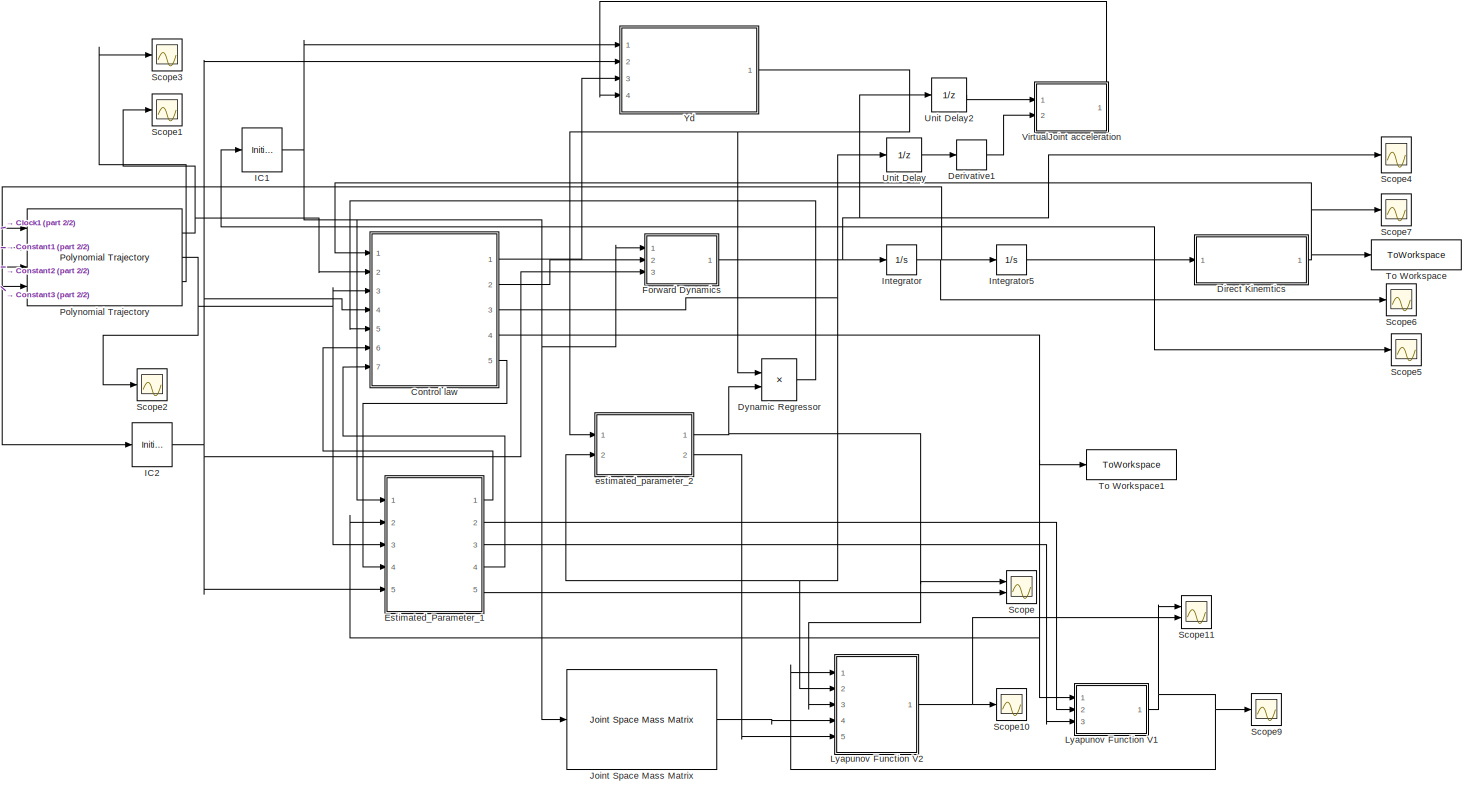
[diagram: root canvas - part 1/2, most of the canvas]
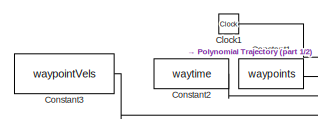
[diagram: root canvas - part 2/2, top left region]
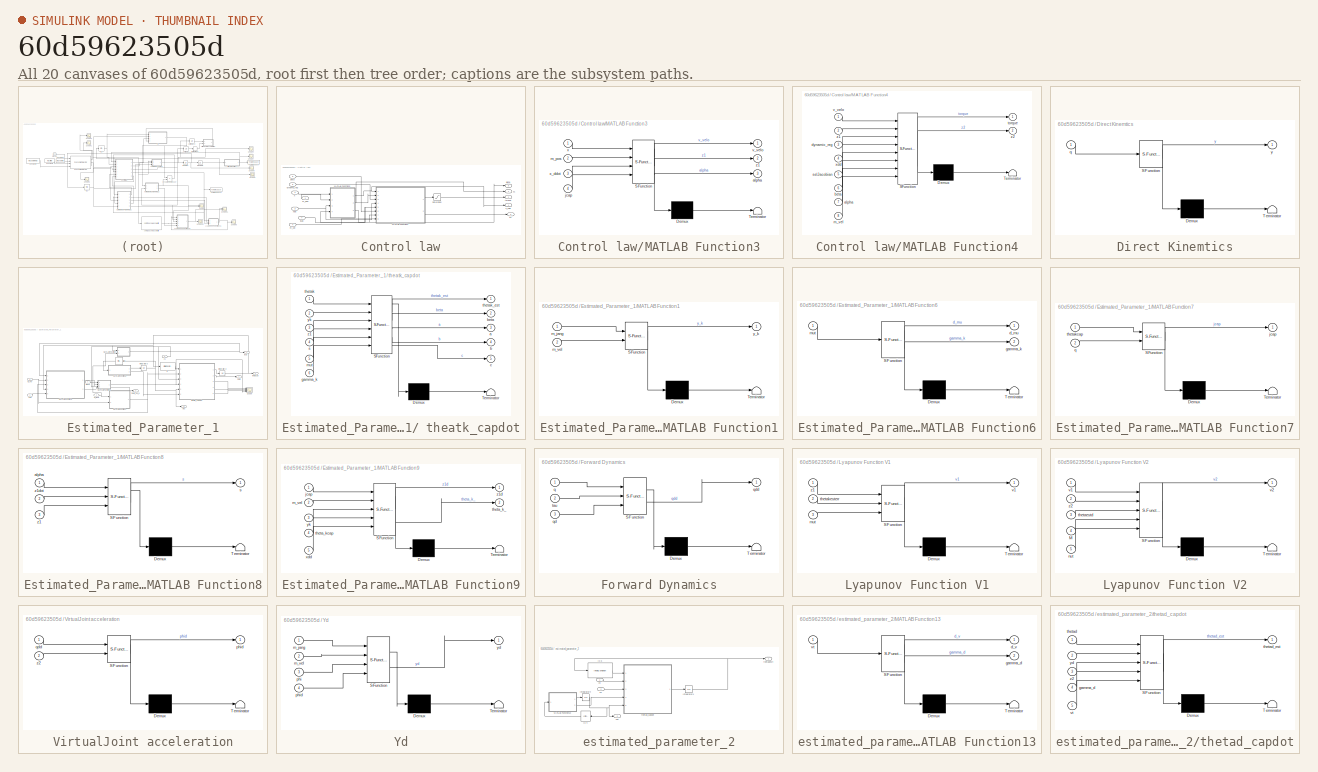
[diagram: thumbnail index - all 20 canvases of the model, root first then tree order]
MODEL slx_60d59623505d
KIND model
CONFIG AbsTol = auto
CONFIG EnableMultiTasking = off
CONFIG FixedStep = 1
CONFIG MaxStep = auto
CONFIG MinStep = auto
CONFIG RelTol = 1e-3
CONFIG SampleTimeConstraint = Unconstrained
CONFIG SolverName = ode15s
CONFIG StartTime = 0.0
CONFIG StopTime = t_f
BLOCK [Clock] Clock1
BLOCK [Constant] Constant1
  Value = waypoints
BLOCK [Constant] Constant2
  Value = waytime
BLOCK [Constant] Constant3
  Value = waypointVels
BLOCK [SubSystem] Control law
  Ports = [7, 5]
  RequestExecContextInheritance = off
BLOCK [SubSystem] Control law/MATLAB Function3
  ErrorFcn = Stateflow.Translate.translate
  PermitHierarchicalResolution = ExplicitOnly
  Ports = [4, 3]
  RequestExecContextInheritance = off
  SFBlockType = MATLAB Function
  TreatAsAtomicUnit = on
BLOCK [Demux] Control law/MATLAB Function3/ Demux 
  Outputs = 1
  Ports = [1, 1]
BLOCK [S-Function] Control law/MATLAB Function3/ SFunction 
  EnableBusSupport = on
  FunctionName = sf_sfun
  PortCounts = [4 4]
  Ports = [4, 4]
  SFcnIsStateOwnerBlock = off
  SFunctionDeploymentMode = off
  Tag = Stateflow S-Function 4
BLOCK [Terminator] Control law/MATLAB Function3/ Terminator 
BLOCK [Outport] Control law/MATLAB Function3/alpha
  Port = 3
BLOCK [Inport] Control law/MATLAB Function3/jcap
  Port = 4
BLOCK [Inport] Control law/MATLAB Function3/m_pos
  Port = 2
BLOCK [Outport] Control law/MATLAB Function3/v_velo
BLOCK [Inport] Control law/MATLAB Function3/x
BLOCK [Inport] Control law/MATLAB Function3/x_ddot
  Port = 3
BLOCK [Outport] Control law/MATLAB Function3/z1
  Port = 2
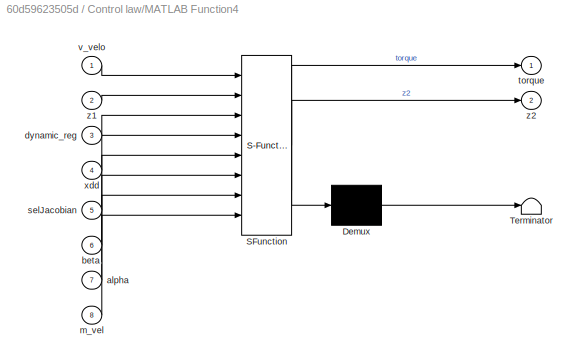
BLOCK [SubSystem] Control law/MATLAB Function4
  ErrorFcn = Stateflow.Translate.translate
  PermitHierarchicalResolution = ExplicitOnly
  Ports = [8, 2]
  RequestExecContextInheritance = off
  SFBlockType = MATLAB Function
  TreatAsAtomicUnit = on
BLOCK [Demux] Control law/MATLAB Function4/ Demux 
  Outputs = 1
  Ports = [1, 1]
BLOCK [S-Function] Control law/MATLAB Function4/ SFunction 
  EnableBusSupport = on
  FunctionName = sf_sfun
  PortCounts = [8 3]
  Ports = [8, 3]
  SFcnIsStateOwnerBlock = off
  SFunctionDeploymentMode = off
  Tag = Stateflow S-Function 5
BLOCK [Terminator] Control law/MATLAB Function4/ Terminator 
BLOCK [Inport] Control law/MATLAB Function4/alpha
  Port = 7
BLOCK [Inport] Control law/MATLAB Function4/beta
  Port = 6
BLOCK [Inport] Control law/MATLAB Function4/dynamic_reg
  Port = 3
BLOCK [Inport] Control law/MATLAB Function4/m_vel
  Port = 8
BLOCK [Inport] Control law/MATLAB Function4/selJacobian
  Port = 5
BLOCK [Outport] Control law/MATLAB Function4/torque
BLOCK [Inport] Control law/MATLAB Function4/v_velo
BLOCK [Inport] Control law/MATLAB Function4/xdd
  Port = 4
BLOCK [Inport] Control law/MATLAB Function4/z1
  Port = 2
BLOCK [Outport] Control law/MATLAB Function4/z2
  Port = 2
BLOCK [Saturate] Control law/Saturation
  LowerLimit = [0.0001,0.0001]
  UpperLimit = [5,5]
BLOCK [Outport] Control law/alpha
  Port = 5
BLOCK [Inport] Control law/beta
  Port = 6
BLOCK [Inport] Control law/dynamic_reg
  Port = 5
BLOCK [Inport] Control law/jcap
  Port = 7
BLOCK [Inport] Control law/m_pos
BLOCK [Inport] Control law/m_vel
  Port = 4
BLOCK [Outport] Control law/torque
  Port = 2
BLOCK [Outport] Control law/v_velo
BLOCK [Inport] Control law/x
  Port = 2
BLOCK [Inport] Control law/xdd
  Port = 3
BLOCK [Outport] Control law/z1
  Port = 4
BLOCK [Outport] Control law/z2
  Port = 3
BLOCK [Derivative] Derivative1
BLOCK [SubSystem] Direct Kinemtics
  ErrorFcn = Stateflow.Translate.translate
  PermitHierarchicalResolution = ExplicitOnly
  Ports = [1, 1]
  RequestExecContextInheritance = off
  SFBlockType = MATLAB Function
  TreatAsAtomicUnit = on
BLOCK [Demux] Direct Kinemtics/ Demux 
  Outputs = 1
  Ports = [1, 1]
BLOCK [S-Function] Direct Kinemtics/ SFunction 
  EnableBusSupport = on
  FunctionName = sf_sfun
  PortCounts = [1 2]
  Ports = [1, 2]
  SFcnIsStateOwnerBlock = off
  SFunctionDeploymentMode = off
  Tag = Stateflow S-Function 6
BLOCK [Terminator] Direct Kinemtics/ Terminator 
BLOCK [Inport] Direct Kinemtics/q
BLOCK [Outport] Direct Kinemtics/y
BLOCK [Product] Dynamic Regressor
  Multiplication = Matrix(*)
  Ports = [2, 1]
BLOCK [SubSystem] Estimated_Parameter_1
  Ports = [5, 5]
  RequestExecContextInheritance = off
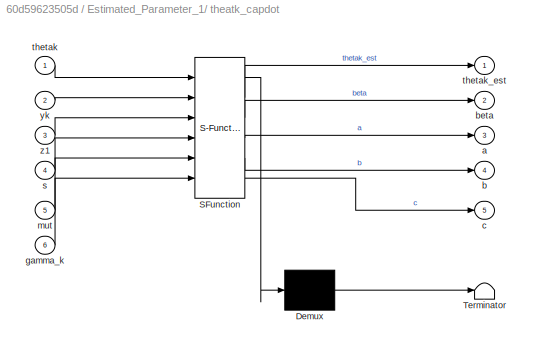
BLOCK [SubSystem] Estimated_Parameter_1/ theatk_capdot
  ErrorFcn = Stateflow.Translate.translate
  PermitHierarchicalResolution = ExplicitOnly
  Ports = [6, 5]
  RequestExecContextInheritance = off
  SFBlockType = MATLAB Function
  TreatAsAtomicUnit = on
BLOCK [Demux] Estimated_Parameter_1/ theatk_capdot/ Demux 
  Outputs = 1
  Ports = [1, 1]
BLOCK [S-Function] Estimated_Parameter_1/ theatk_capdot/ SFunction 
  EnableBusSupport = on
  FunctionName = sf_sfun
  PortCounts = [6 6]
  Ports = [6, 6]
  SFcnIsStateOwnerBlock = off
  SFunctionDeploymentMode = off
  Tag = Stateflow S-Function 3
BLOCK [Terminator] Estimated_Parameter_1/ theatk_capdot/ Terminator 
BLOCK [Outport] Estimated_Parameter_1/ theatk_capdot/a
  Port = 3
BLOCK [Outport] Estimated_Parameter_1/ theatk_capdot/b
  Port = 4
BLOCK [Outport] Estimated_Parameter_1/ theatk_capdot/beta
  Port = 2
BLOCK [Outport] Estimated_Parameter_1/ theatk_capdot/c
  Port = 5
BLOCK [Inport] Estimated_Parameter_1/ theatk_capdot/gamma_k
  Port = 6
BLOCK [Inport] Estimated_Parameter_1/ theatk_capdot/mut
  Port = 5
BLOCK [Inport] Estimated_Parameter_1/ theatk_capdot/s
  Port = 4
BLOCK [Inport] Estimated_Parameter_1/ theatk_capdot/thetak
BLOCK [Outport] Estimated_Parameter_1/ theatk_capdot/thetak_est
BLOCK [Inport] Estimated_Parameter_1/ theatk_capdot/yk
  Port = 2
BLOCK [Inport] Estimated_Parameter_1/ theatk_capdot/z1
  Port = 3
BLOCK [InitialCondition] Estimated_Parameter_1/IC
  Value = [0.35;0.35]
BLOCK [InitialCondition] Estimated_Parameter_1/IC5
  Value = [0.01;0.01]
BLOCK [Integrator] Estimated_Parameter_1/Integrator2
  InitialCondition = [0.35;0.35]
  Ports = [1, 1]
BLOCK [Integrator] Estimated_Parameter_1/Integrator3
  InitialCondition = [0.01;0.01]
  Ports = [1, 1]
BLOCK [SubSystem] Estimated_Parameter_1/MATLAB Function1
  ErrorFcn = Stateflow.Translate.translate
  PermitHierarchicalResolution = ExplicitOnly
  Ports = [2, 1]
  RequestExecContextInheritance = off
  SFBlockType = MATLAB Function
  TreatAsAtomicUnit = on
BLOCK [Demux] Estimated_Parameter_1/MATLAB Function1/ Demux 
  Outputs = 1
  Ports = [1, 1]
BLOCK [S-Function] Estimated_Parameter_1/MATLAB Function1/ SFunction 
  EnableBusSupport = on
  FunctionName = sf_sfun
  PortCounts = [2 2]
  Ports = [2, 2]
  SFcnIsStateOwnerBlock = off
  SFunctionDeploymentMode = off
  Tag = Stateflow S-Function 1
BLOCK [Terminator] Estimated_Parameter_1/MATLAB Function1/ Terminator 
BLOCK [Inport] Estimated_Parameter_1/MATLAB Function1/m_jang
BLOCK [Inport] Estimated_Parameter_1/MATLAB Function1/m_vel
  Port = 2
BLOCK [Outport] Estimated_Parameter_1/MATLAB Function1/y_k
BLOCK [SubSystem] Estimated_Parameter_1/MATLAB Function6
  ErrorFcn = Stateflow.Translate.translate
  PermitHierarchicalResolution = ExplicitOnly
  Ports = [1, 2]
  RequestExecContextInheritance = off
  SFBlockType = MATLAB Function
  TreatAsAtomicUnit = on
BLOCK [Demux] Estimated_Parameter_1/MATLAB Function6/ Demux 
  Outputs = 1
  Ports = [1, 1]
BLOCK [S-Function] Estimated_Parameter_1/MATLAB Function6/ SFunction 
  EnableBusSupport = on
  FunctionName = sf_sfun
  PortCounts = [1 3]
  Ports = [1, 3]
  SFcnIsStateOwnerBlock = off
  SFunctionDeploymentMode = off
  Tag = Stateflow S-Function 7
BLOCK [Terminator] Estimated_Parameter_1/MATLAB Function6/ Terminator 
BLOCK [Outport] Estimated_Parameter_1/MATLAB Function6/d_mu
BLOCK [Outport] Estimated_Parameter_1/MATLAB Function6/gamma_k
  Port = 2
BLOCK [Inport] Estimated_Parameter_1/MATLAB Function6/mut
BLOCK [SubSystem] Estimated_Parameter_1/MATLAB Function7
  ErrorFcn = Stateflow.Translate.translate
  PermitHierarchicalResolution = ExplicitOnly
  Ports = [2, 1]
  RequestExecContextInheritance = off
  SFBlockType = MATLAB Function
  TreatAsAtomicUnit = on
BLOCK [Demux] Estimated_Parameter_1/MATLAB Function7/ Demux 
  Outputs = 1
  Ports = [1, 1]
BLOCK [S-Function] Estimated_Parameter_1/MATLAB Function7/ SFunction 
  EnableBusSupport = on
  FunctionName = sf_sfun
  PortCounts = [2 2]
  Ports = [2, 2]
  SFcnIsStateOwnerBlock = off
  SFunctionDeploymentMode = off
  Tag = Stateflow S-Function 8
BLOCK [Terminator] Estimated_Parameter_1/MATLAB Function7/ Terminator 
BLOCK [Outport] Estimated_Parameter_1/MATLAB Function7/jcap
BLOCK [Inport] Estimated_Parameter_1/MATLAB Function7/q
  Port = 2
BLOCK [Inport] Estimated_Parameter_1/MATLAB Function7/thetakcap
BLOCK [SubSystem] Estimated_Parameter_1/MATLAB Function8
  ErrorFcn = Stateflow.Translate.translate
  PermitHierarchicalResolution = ExplicitOnly
  Ports = [3, 1]
  RequestExecContextInheritance = off
  SFBlockType = MATLAB Function
  TreatAsAtomicUnit = on
BLOCK [Demux] Estimated_Parameter_1/MATLAB Function8/ Demux 
  Outputs = 1
  Ports = [1, 1]
BLOCK [S-Function] Estimated_Parameter_1/MATLAB Function8/ SFunction 
  EnableBusSupport = on
  FunctionName = sf_sfun
  PortCounts = [3 2]
  Ports = [3, 2]
  SFcnIsStateOwnerBlock = off
  SFunctionDeploymentMode = off
  Tag = Stateflow S-Function 9
BLOCK [Terminator] Estimated_Parameter_1/MATLAB Function8/ Terminator 
BLOCK [Inport] Estimated_Parameter_1/MATLAB Function8/alpha
BLOCK [Outport] Estimated_Parameter_1/MATLAB Function8/s
BLOCK [Inport] Estimated_Parameter_1/MATLAB Function8/z1
  Port = 3
BLOCK [Inport] Estimated_Parameter_1/MATLAB Function8/z1dot
  Port = 2
BLOCK [SubSystem] Estimated_Parameter_1/MATLAB Function9
  ErrorFcn = Stateflow.Translate.translate
  PermitHierarchicalResolution = ExplicitOnly
  Ports = [5, 2]
  RequestExecContextInheritance = off
  SFBlockType = MATLAB Function
  TreatAsAtomicUnit = on
BLOCK [Demux] Estimated_Parameter_1/MATLAB Function9/ Demux 
  Outputs = 1
  Ports = [1, 1]
BLOCK [S-Function] Estimated_Parameter_1/MATLAB Function9/ SFunction 
  EnableBusSupport = on
  FunctionName = sf_sfun
  PortCounts = [5 3]
  Ports = [5, 3]
  SFcnIsStateOwnerBlock = off
  SFunctionDeploymentMode = off
  Tag = Stateflow S-Function 10
BLOCK [Terminator] Estimated_Parameter_1/MATLAB Function9/ Terminator 
BLOCK [Inport] Estimated_Parameter_1/MATLAB Function9/jcap
BLOCK [Inport] Estimated_Parameter_1/MATLAB Function9/m_vel
  Port = 2
BLOCK [Outport] Estimated_Parameter_1/MATLAB Function9/theta_k_
  Port = 2
BLOCK [Inport] Estimated_Parameter_1/MATLAB Function9/theta_kcap
  Port = 4
BLOCK [Inport] Estimated_Parameter_1/MATLAB Function9/xdd
  Port = 5
BLOCK [Inport] Estimated_Parameter_1/MATLAB Function9/yk
  Port = 3
BLOCK [Outport] Estimated_Parameter_1/MATLAB Function9/z1d
BLOCK [Scope] Estimated_Parameter_1/Scope
  Floating = off
  NumInputPorts = 4
  Ports = [4]
  ScopeSpecificationString = Simulink.scopes.TimeScopeBlockCfg('CurrentConfiguration', extmgr.ConfigurationSet(extmgr.Configuration('Core','General UI',true),extmgr.Configuration('Core','Source UI',true),extmgr.Configuration('Sources','WiredSimulink',true,'DataLoggingVariableName','ScopeData1'),extmgr.Configuration('Visuals','Time Domain',true,'SerializedDisplays',{struct('MinYLimReal','-7.457','MaxYLimReal','7.44667','YLabel...<+3496ch>
BLOCK [Inport] Estimated_Parameter_1/alpha
  Port = 4
BLOCK [Outport] Estimated_Parameter_1/beta
BLOCK [Outport] Estimated_Parameter_1/jcap
  Port = 4
BLOCK [Inport] Estimated_Parameter_1/m_jang
BLOCK [Inport] Estimated_Parameter_1/m_vel
  Port = 5
BLOCK [Outport] Estimated_Parameter_1/mut
  Port = 3
BLOCK [Outport] Estimated_Parameter_1/theta_est_k
  Port = 2
BLOCK [Outport] Estimated_Parameter_1/thetacap
  Port = 5
BLOCK [Inport] Estimated_Parameter_1/xdd
  Port = 3
BLOCK [Inport] Estimated_Parameter_1/z1
  Port = 2
BLOCK [SubSystem] Forward Dynamics
  ErrorFcn = Stateflow.Translate.translate
  PermitHierarchicalResolution = ExplicitOnly
  Ports = [3, 1]
  RequestExecContextInheritance = off
  SFBlockType = MATLAB Function
  TreatAsAtomicUnit = on
BLOCK [Demux] Forward Dynamics/ Demux 
  Outputs = 1
  Ports = [1, 1]
BLOCK [S-Function] Forward Dynamics/ SFunction 
  EnableBusSupport = on
  FunctionName = sf_sfun
  PortCounts = [3 2]
  Ports = [3, 2]
  SFcnIsStateOwnerBlock = off
  SFunctionDeploymentMode = off
  Tag = Stateflow S-Function 16
BLOCK [Terminator] Forward Dynamics/ Terminator 
BLOCK [Inport] Forward Dynamics/q
BLOCK [Inport] Forward Dynamics/qd
  Port = 3
BLOCK [Outport] Forward Dynamics/qdd
BLOCK [Inport] Forward Dynamics/tau
  Port = 2
BLOCK [InitialCondition] IC1
  Value = [pi/3;pi/3]
BLOCK [InitialCondition] IC2
  Value = [pi/18;pi/20]
BLOCK [Integrator] Integrator
  ContinuousStateAttributes = 'acceleration'
  IgnoreLimit = on
  InitialCondition = [pi/18;pi/20]
  Ports = [1, 1]
BLOCK [Integrator] Integrator5
  InitialCondition = [pi/3;pi/3]
  Ports = [1, 1]
BLOCK [Reference] Joint Space Mass Matrix  REF=robotmaniplib/Joint Space Mass Matrix
  Ports = [1, 1]
  SourceBlock = robotmaniplib/Joint Space Mass Matrix
  SourceProductBaseCode = RO
  SourceType = Joint Space Mass Matrix
BLOCK [SubSystem] Lyapunov Function V1
  ErrorFcn = Stateflow.Translate.translate
  PermitHierarchicalResolution = ExplicitOnly
  Ports = [3, 1]
  RequestExecContextInheritance = off
  SFBlockType = MATLAB Function
  TreatAsAtomicUnit = on
BLOCK [Demux] Lyapunov Function V1/ Demux 
  Outputs = 1
  Ports = [1, 1]
BLOCK [S-Function] Lyapunov Function V1/ SFunction 
  EnableBusSupport = on
  FunctionName = sf_sfun
  PortCounts = [3 2]
  Ports = [3, 2]
  SFcnIsStateOwnerBlock = off
  SFunctionDeploymentMode = off
  Tag = Stateflow S-Function 13
BLOCK [Terminator] Lyapunov Function V1/ Terminator 
BLOCK [Inport] Lyapunov Function V1/mut
  Port = 3
BLOCK [Inport] Lyapunov Function V1/thetakesterr
  Port = 2
BLOCK [Outport] Lyapunov Function V1/v1
BLOCK [Inport] Lyapunov Function V1/z1
BLOCK [SubSystem] Lyapunov Function V2
  ErrorFcn = Stateflow.Translate.translate
  PermitHierarchicalResolution = ExplicitOnly
  Ports = [5, 1]
  RequestExecContextInheritance = off
  SFBlockType = MATLAB Function
  TreatAsAtomicUnit = on
BLOCK [Demux] Lyapunov Function V2/ Demux 
  Outputs = 1
  Ports = [1, 1]
BLOCK [S-Function] Lyapunov Function V2/ SFunction 
  EnableBusSupport = on
  FunctionName = sf_sfun
  PortCounts = [5 2]
  Ports = [5, 2]
  SFcnIsStateOwnerBlock = off
  SFunctionDeploymentMode = off
  Tag = Stateflow S-Function 15
BLOCK [Terminator] Lyapunov Function V2/ Terminator 
BLOCK [Inport] Lyapunov Function V2/M
  Port = 4
BLOCK [Inport] Lyapunov Function V2/nut
  Port = 5
BLOCK [Inport] Lyapunov Function V2/thetaestd
  Port = 3
BLOCK [Inport] Lyapunov Function V2/v1
BLOCK [Outport] Lyapunov Function V2/v2
BLOCK [Inport] Lyapunov Function V2/z2
  Port = 2
BLOCK [Reference] Polynomial Trajectory  REF=robotcorelib/Polynomial Trajectory
  Ports = [4, 3]
  SourceBlock = robotcorelib/Polynomial Trajectory
  SourceProductBaseCode = NV,RO,RR,UV
  SourceType = robotics.slcore.internal.block.PolyTrajSys
BLOCK [Scope] Scope
  Floating = off
  NumInputPorts = 2
  Ports = [2]
  ScopeSpecificationString = Simulink.scopes.TimeScopeBlockCfg('CurrentConfiguration', extmgr.ConfigurationSet(extmgr.Configuration('Core','General UI',true),extmgr.Configuration('Core','Source UI',true),extmgr.Configuration('Sources','WiredSimulink',true,'DataLoggingVariableName','ScopeData1'),extmgr.Configuration('Visuals','Time Domain',true,'SerializedDisplays',{struct('MinYLimReal','-208.98174','MaxYLimReal','848.30983','...<+2185ch>
BLOCK [Scope] Scope1
  Floating = off
  NumInputPorts = 1
  Ports = [1]
  ScopeSpecificationString = Simulink.scopes.TimeScopeBlockCfg('CurrentConfiguration', extmgr.ConfigurationSet(extmgr.Configuration('Core','General UI',true),extmgr.Configuration('Core','Source UI',true),extmgr.Configuration('Sources','WiredSimulink',true,'DataLoggingVariableName','ScopeData1'),extmgr.Configuration('Visuals','Time Domain',true,'SerializedDisplays',{struct('MinYLimReal','-0.06287','MaxYLimReal','0.56583','YLab...<+1467ch>
BLOCK [Scope] Scope10
  Floating = off
  NumInputPorts = 1
  Ports = [1]
  ScopeSpecificationString = Simulink.scopes.TimeScopeBlockCfg('CurrentConfiguration', extmgr.ConfigurationSet(extmgr.Configuration('Core','General UI',true),extmgr.Configuration('Core','Source UI',true),extmgr.Configuration('Sources','WiredSimulink',true,'DataLoggingVariableName','ScopeData2'),extmgr.Configuration('Visuals','Time Domain',true,'SerializedDisplays',{struct('MinYLimReal','0.00173','MaxYLimReal','0.00208','YLabe...<+1920ch>
BLOCK [Scope] Scope11
  Floating = off
  NumInputPorts = 2
  Ports = [2]
  ScopeSpecificationString = Simulink.scopes.TimeScopeBlockCfg('CurrentConfiguration', extmgr.ConfigurationSet(extmgr.Configuration('Core','General UI',true),extmgr.Configuration('Core','Source UI',true),extmgr.Configuration('Sources','WiredSimulink',true,'DataLoggingVariableName','ScopeData1'),extmgr.Configuration('Visuals','Time Domain',true,'SerializedDisplays',{struct('MinYLimReal','-267183225.21779','MaxYLimReal','240464...<+2051ch>
BLOCK [Scope] Scope2
  Floating = off
  NumInputPorts = 1
  Ports = [1]
  ScopeSpecificationString = Simulink.scopes.TimeScopeBlockCfg('CurrentConfiguration', extmgr.ConfigurationSet(extmgr.Configuration('Core','General UI',true),extmgr.Configuration('Core','Source UI',true),extmgr.Configuration('Sources','WiredSimulink',true,'DataLoggingVariableName','ScopeData2'),extmgr.Configuration('Visuals','Time Domain',true,'SerializedDisplays',{struct('MinYLimReal','-0.03156','MaxYLimReal','0.20906','YLab...<+1476ch>
BLOCK [Scope] Scope3
  Floating = off
  NumInputPorts = 1
  Ports = [1]
  ScopeSpecificationString = Simulink.scopes.TimeScopeBlockCfg('CurrentConfiguration', extmgr.ConfigurationSet(extmgr.Configuration('Core','General UI',true),extmgr.Configuration('Core','Source UI',true),extmgr.Configuration('Sources','WiredSimulink',true,'DataLoggingVariableName','ScopeData3'),extmgr.Configuration('Visuals','Time Domain',true,'SerializedDisplays',{struct('MinYLimReal','-0.000007','MaxYLimReal','0.000008','YL...<+1477ch>
BLOCK [Scope] Scope4
  Floating = off
  NumInputPorts = 1
  Ports = [1]
  ScopeSpecificationString = Simulink.scopes.TimeScopeBlockCfg('CurrentConfiguration', extmgr.ConfigurationSet(extmgr.Configuration('Core','General UI',true),extmgr.Configuration('Core','Source UI',true),extmgr.Configuration('Sources','WiredSimulink',true,'DataLoggingVariableName','ScopeData2'),extmgr.Configuration('Visuals','Time Domain',true,'SerializedDisplays',{struct('MinYLimReal','-27277.49326','MaxYLimReal','25206.4505...<+1492ch>
BLOCK [Scope] Scope5
  Floating = off
  NumInputPorts = 1
  Ports = [1]
  ScopeSpecificationString = Simulink.scopes.TimeScopeBlockCfg('CurrentConfiguration', extmgr.ConfigurationSet(extmgr.Configuration('Core','General UI',true),extmgr.Configuration('Core','Source UI',true),extmgr.Configuration('Sources','WiredSimulink',true,'DataLoggingVariableName','ScopeData3'),extmgr.Configuration('Visuals','Time Domain',true,'SerializedDisplays',{struct('MinYLimReal','-459.68863','MaxYLimReal','1416.13368',...<+1433ch>
BLOCK [Scope] Scope6
  Floating = off
  NumInputPorts = 1
  Ports = [1]
  ScopeSpecificationString = Simulink.scopes.TimeScopeBlockCfg('CurrentConfiguration', extmgr.ConfigurationSet(extmgr.Configuration('Core','General UI',true),extmgr.Configuration('Core','Source UI',true),extmgr.Configuration('Sources','WiredSimulink',true,'DataLoggingVariableName','ScopeData4'),extmgr.Configuration('Visuals','Time Domain',true,'SerializedDisplays',{struct('MinYLimReal','-5.72817','MaxYLimReal','10.10819','YLa...<+1424ch>
BLOCK [Scope] Scope7
  Floating = off
  NumInputPorts = 1
  Ports = [1]
  ScopeSpecificationString = Simulink.scopes.TimeScopeBlockCfg('CurrentConfiguration', extmgr.ConfigurationSet(extmgr.Configuration('Core','General UI',true),extmgr.Configuration('Core','Source UI',true),extmgr.Configuration('Sources','WiredSimulink',true,'DataLoggingVariableName','ScopeData5'),extmgr.Configuration('Visuals','Time Domain',true,'SerializedDisplays',{struct('MinYLimReal','-0.29308','MaxYLimReal','0.71031','YLab...<+1431ch>
BLOCK [Scope] Scope9
  Floating = off
  NumInputPorts = 1
  Ports = [1]
  ScopeSpecificationString = Simulink.scopes.TimeScopeBlockCfg('CurrentConfiguration', extmgr.ConfigurationSet(extmgr.Configuration('Core','General UI',true),extmgr.Configuration('Core','Source UI',true),extmgr.Configuration('Sources','WiredSimulink',true,'DataLoggingVariableName','ScopeData1'),extmgr.Configuration('Visuals','Time Domain',true,'SerializedDisplays',{struct('MinYLimReal','-266838854.62598','MaxYLimReal','240154...<+1945ch>
BLOCK [ToWorkspace] To Workspace
  FixptAsFi = on
  MaxDataPoints = inf
  Ports = [1]
  SampleTime = -1
  SaveFormat = Structure With Time
  VariableName = position
BLOCK [ToWorkspace] To Workspace1
  FixptAsFi = on
  MaxDataPoints = inf
  Ports = [1]
  SampleTime = -1
  SaveFormat = Structure With Time
  VariableName = error
BLOCK [UnitDelay] Unit Delay
  HasFrameUpgradeWarning = on
  SampleTime = -1
BLOCK [UnitDelay] Unit Delay2
  HasFrameUpgradeWarning = on
  SampleTime = -1
BLOCK [SubSystem] VirtualJoint acceleration
  ErrorFcn = Stateflow.Translate.translate
  PermitHierarchicalResolution = ExplicitOnly
  Ports = [2, 1]
  RequestExecContextInheritance = off
  SFBlockType = MATLAB Function
  TreatAsAtomicUnit = on
BLOCK [Demux] VirtualJoint acceleration/ Demux 
  Outputs = 1
  Ports = [1, 1]
BLOCK [S-Function] VirtualJoint acceleration/ SFunction 
  EnableBusSupport = on
  FunctionName = sf_sfun
  PortCounts = [2 2]
  Ports = [2, 2]
  SFcnIsStateOwnerBlock = off
  SFunctionDeploymentMode = off
  Tag = Stateflow S-Function 2
BLOCK [Terminator] VirtualJoint acceleration/ Terminator 
BLOCK [Outport] VirtualJoint acceleration/phid
BLOCK [Inport] VirtualJoint acceleration/qdd
BLOCK [Inport] VirtualJoint acceleration/z2
  Port = 2
BLOCK [SubSystem] Yd
  ErrorFcn = Stateflow.Translate.translate
  PermitHierarchicalResolution = ExplicitOnly
  Ports = [4, 1]
  RequestExecContextInheritance = off
  SFBlockType = MATLAB Function
  TreatAsAtomicUnit = on
BLOCK [Demux] Yd/ Demux 
  Outputs = 1
  Ports = [1, 1]
BLOCK [S-Function] Yd/ SFunction 
  EnableBusSupport = on
  FunctionName = sf_sfun
  PortCounts = [4 2]
  Ports = [4, 2]
  SFcnIsStateOwnerBlock = off
  SFunctionDeploymentMode = off
  Tag = Stateflow S-Function 11
BLOCK [Terminator] Yd/ Terminator 
BLOCK [Inport] Yd/m_jang
BLOCK [Inport] Yd/m_vel
  Port = 2
BLOCK [Inport] Yd/phi
  Port = 3
BLOCK [Inport] Yd/phid
  Port = 4
BLOCK [Outport] Yd/yd
BLOCK [SubSystem] estimated_parameter_2
  Ports = [2, 2]
  RequestExecContextInheritance = off
BLOCK [InitialCondition] estimated_parameter_2/IC3
  Value = [1.2;1.2;1.2;1.2;1.2;1.2;1.2;1.2]
BLOCK [InitialCondition] estimated_parameter_2/IC4
  Value = 0.001*[1;1;1;1;1;1;1;1]
BLOCK [Integrator] estimated_parameter_2/Integrator1
  InitialCondition = [1.2;1.2;1.2;1.2;1.2;1.2;1.2;1.2]
  Ports = [1, 1]
BLOCK [Integrator] estimated_parameter_2/Integrator4
  InitialCondition = 0.001*[1;1;1;1;1;1;1;1]
  Ports = [1, 1]
BLOCK [SubSystem] estimated_parameter_2/MATLAB Function13
  ErrorFcn = Stateflow.Translate.translate
  PermitHierarchicalResolution = ExplicitOnly
  Ports = [1, 2]
  RequestExecContextInheritance = off
  SFBlockType = MATLAB Function
  TreatAsAtomicUnit = on
BLOCK [Demux] estimated_parameter_2/MATLAB Function13/ Demux 
  Outputs = 1
  Ports = [1, 1]
BLOCK [S-Function] estimated_parameter_2/MATLAB Function13/ SFunction 
  EnableBusSupport = on
  FunctionName = sf_sfun
  PortCounts = [1 3]
  Ports = [1, 3]
  SFcnIsStateOwnerBlock = off
  SFunctionDeploymentMode = off
  Tag = Stateflow S-Function 14
BLOCK [Terminator] estimated_parameter_2/MATLAB Function13/ Terminator 
BLOCK [Outport] estimated_parameter_2/MATLAB Function13/d_v
BLOCK [Outport] estimated_parameter_2/MATLAB Function13/gamma_d
  Port = 2
BLOCK [Inport] estimated_parameter_2/MATLAB Function13/vt
BLOCK [Outport] estimated_parameter_2/nut
  Port = 2
BLOCK [SubSystem] estimated_parameter_2/thetad_capdot
  ErrorFcn = Stateflow.Translate.translate
  PermitHierarchicalResolution = ExplicitOnly
  Ports = [5, 1]
  RequestExecContextInheritance = off
  SFBlockType = MATLAB Function
  TreatAsAtomicUnit = on
BLOCK [Demux] estimated_parameter_2/thetad_capdot/ Demux 
  Outputs = 1
  Ports = [1, 1]
BLOCK [S-Function] estimated_parameter_2/thetad_capdot/ SFunction 
  EnableBusSupport = on
  FunctionName = sf_sfun
  PortCounts = [5 2]
  Ports = [5, 2]
  SFcnIsStateOwnerBlock = off
  SFunctionDeploymentMode = off
  Tag = Stateflow S-Function 12
BLOCK [Terminator] estimated_parameter_2/thetad_capdot/ Terminator 
BLOCK [Inport] estimated_parameter_2/thetad_capdot/gamma_d
  Port = 4
BLOCK [Inport] estimated_parameter_2/thetad_capdot/thetad
BLOCK [Outport] estimated_parameter_2/thetad_capdot/thetad_est
BLOCK [Inport] estimated_parameter_2/thetad_capdot/vt
  Port = 5
BLOCK [Inport] estimated_parameter_2/thetad_capdot/yd
  Port = 2
BLOCK [Inport] estimated_parameter_2/thetad_capdot/z2
  Port = 3
BLOCK [Outport] estimated_parameter_2/thetadesrt
BLOCK [Inport] estimated_parameter_2/yd
BLOCK [Inport] estimated_parameter_2/z2
  Port = 2
LINE Clock1:1 -> Polynomial Trajectory:1
LINE Constant1:1 -> Polynomial Trajectory:2
LINE Constant2:1 -> Polynomial Trajectory:3
LINE Constant3:1 -> Polynomial Trajectory:4
NET Control law/MATLAB Function3:1 -> Control law/MATLAB Function4:1, Control law/v_velo:1
NET Control law/MATLAB Function3:2 -> Control law/MATLAB Function4:2, Control law/z1:1
NET Control law/MATLAB Function3:3 -> Control law/MATLAB Function4:7, Control law/alpha:1
LINE Control law/MATLAB Function4:1 -> Control law/Saturation:1
LINE Control law/MATLAB Function4:2 -> Control law/z2:1
LINE Control law/Saturation:1 -> Control law/torque:1
LINE Control law/beta:1 -> Control law/MATLAB Function4:6
LINE Control law/dynamic_reg:1 -> Control law/MATLAB Function4:3
NET Control law/jcap:1 -> Control law/MATLAB Function3:4, Control law/MATLAB Function4:5
LINE Control law/m_pos:1 -> Control law/MATLAB Function3:2
LINE Control law/m_vel:1 -> Control law/MATLAB Function4:8
LINE Control law/x:1 -> Control law/MATLAB Function3:1
NET Control law/xdd:1 -> Control law/MATLAB Function3:3, Control law/MATLAB Function4:4
LINE Control law:1 -> Yd:3
LINE Control law:2 -> Forward Dynamics:2
NET Control law:3 -> Lyapunov Function V2:2, Unit Delay:1, estimated_parameter_2:2
NET Control law:4 -> Estimated_Parameter_1:2, Lyapunov Function V1:1, To Workspace1:1
LINE Control law:5 -> Estimated_Parameter_1:4
LINE Derivative1:1 -> VirtualJoint acceleration:2
NET Direct Kinemtics:1 -> Control law:1, Scope7:1, To Workspace:1
LINE Dynamic Regressor:1 -> Control law:5
LINE Estimated_Parameter_1/ theatk_capdot:1 -> Estimated_Parameter_1/Integrator2:1
LINE Estimated_Parameter_1/ theatk_capdot:2 -> Estimated_Parameter_1/beta:1
LINE Estimated_Parameter_1/ theatk_capdot:3 -> Estimated_Parameter_1/Scope:1
LINE Estimated_Parameter_1/ theatk_capdot:4 -> Estimated_Parameter_1/Scope:2
LINE Estimated_Parameter_1/ theatk_capdot:5 -> Estimated_Parameter_1/Scope:3
LINE Estimated_Parameter_1/IC5:1 -> Estimated_Parameter_1/MATLAB Function6:1
LINE Estimated_Parameter_1/IC:1 -> Estimated_Parameter_1/ theatk_capdot:1
NET Estimated_Parameter_1/Integrator2:1 -> Estimated_Parameter_1/IC:1, Estimated_Parameter_1/MATLAB Function7:1, Estimated_Parameter_1/MATLAB Function9:4, Estimated_Parameter_1/thetacap:1
NET Estimated_Parameter_1/Integrator3:1 -> Estimated_Parameter_1/ theatk_capdot:5, Estimated_Parameter_1/IC5:1, Estimated_Parameter_1/mut:1
NET Estimated_Parameter_1/MATLAB Function1:1 -> Estimated_Parameter_1/ theatk_capdot:2, Estimated_Parameter_1/MATLAB Function9:3
LINE Estimated_Parameter_1/MATLAB Function6:1 -> Estimated_Parameter_1/Integrator3:1
LINE Estimated_Parameter_1/MATLAB Function6:2 -> Estimated_Parameter_1/ theatk_capdot:6
NET Estimated_Parameter_1/MATLAB Function7:1 -> Estimated_Parameter_1/MATLAB Function9:1, Estimated_Parameter_1/jcap:1
NET Estimated_Parameter_1/MATLAB Function8:1 -> Estimated_Parameter_1/ theatk_capdot:4, Estimated_Parameter_1/Scope:4
LINE Estimated_Parameter_1/MATLAB Function9:1 -> Estimated_Parameter_1/MATLAB Function8:2
LINE Estimated_Parameter_1/MATLAB Function9:2 -> Estimated_Parameter_1/theta_est_k:1
LINE Estimated_Parameter_1/alpha:1 -> Estimated_Parameter_1/MATLAB Function8:1
NET Estimated_Parameter_1/m_jang:1 -> Estimated_Parameter_1/MATLAB Function1:1, Estimated_Parameter_1/MATLAB Function7:2
NET Estimated_Parameter_1/m_vel:1 -> Estimated_Parameter_1/MATLAB Function1:2, Estimated_Parameter_1/MATLAB Function9:2
LINE Estimated_Parameter_1/xdd:1 -> Estimated_Parameter_1/MATLAB Function9:5
NET Estimated_Parameter_1/z1:1 -> Estimated_Parameter_1/ theatk_capdot:3, Estimated_Parameter_1/MATLAB Function8:3
LINE Estimated_Parameter_1:1 -> Control law:6
LINE Estimated_Parameter_1:2 -> Lyapunov Function V1:2
LINE Estimated_Parameter_1:3 -> Lyapunov Function V1:3
LINE Estimated_Parameter_1:4 -> Control law:7
LINE Estimated_Parameter_1:5 -> Scope:2
NET Forward Dynamics:1 -> Integrator:1, Scope4:1, Unit Delay2:1
NET IC1:1 -> Estimated_Parameter_1:1, Forward Dynamics:1, Joint Space Mass Matrix:1, Yd:1
NET IC2:1 -> Control law:4, Estimated_Parameter_1:5, Forward Dynamics:3, Yd:2
NET Integrator5:1 -> Direct Kinemtics:1, IC1:1, Scope5:1
NET Integrator:1 -> IC2:1, Integrator5:1, Scope6:1
LINE Joint Space Mass Matrix:1 -> Lyapunov Function V2:4
NET Lyapunov Function V1:1 -> Lyapunov Function V2:1, Scope11:1, Scope9:1
NET Lyapunov Function V2:1 -> Scope10:1, Scope11:2
NET Polynomial Trajectory:1 -> Control law:2, Scope1:1
NET Polynomial Trajectory:2 -> Control law:3, Estimated_Parameter_1:3, Scope2:1
LINE Polynomial Trajectory:3 -> Scope3:1
LINE Unit Delay2:1 -> VirtualJoint acceleration:1
LINE Unit Delay:1 -> Derivative1:1
LINE VirtualJoint acceleration:1 -> Yd:4
NET Yd:1 -> Dynamic Regressor:1, estimated_parameter_2:1
LINE estimated_parameter_2/IC3:1 -> estimated_parameter_2/thetad_capdot:1
LINE estimated_parameter_2/IC4:1 -> estimated_parameter_2/MATLAB Function13:1
NET estimated_parameter_2/Integrator1:1 -> estimated_parameter_2/IC3:1, estimated_parameter_2/thetadesrt:1
NET estimated_parameter_2/Integrator4:1 -> estimated_parameter_2/IC4:1, estimated_parameter_2/nut:1, estimated_parameter_2/thetad_capdot:5
LINE estimated_parameter_2/MATLAB Function13:1 -> estimated_parameter_2/Integrator4:1
LINE estimated_parameter_2/MATLAB Function13:2 -> estimated_parameter_2/thetad_capdot:4
LINE estimated_parameter_2/thetad_capdot:1 -> estimated_parameter_2/Integrator1:1
LINE estimated_parameter_2/yd:1 -> estimated_parameter_2/thetad_capdot:2
LINE estimated_parameter_2/z2:1 -> estimated_parameter_2/thetad_capdot:3
NET estimated_parameter_2:1 -> Dynamic Regressor:2, Lyapunov Function V2:3, Scope:1
LINE estimated_parameter_2:2 -> Lyapunov Function V2:5
note: NET lines group one-source signal fan-out (src -> all destinations, sorted); 1:1 wires keep LINE
CHART Estimated_Parameter_1/MATLAB Function8 states=1 transitions=1
  STATE_LABEL 'eML_blk_kernel()'
  STATE_LABEL 'SCRIPT:\nfunction s = s(alpha,z1dot,z1)\n\ns = z1dot+(alpha*z1);\n'
CHART Estimated_Parameter_1/MATLAB Function9 states=1 transitions=1
  STATE_LABEL 'eML_blk_kernel()'
  STATE_LABEL 'SCRIPT:\nfunction [z1d,theta_k_] = z1d(jcap, m_vel, yk, theta_kcap, xdd)\nl2 = 0.31;\nl1 = 0.3;\ntheta_k = [l1;l2];\ntheta_k_ = theta_k - theta_kcap;\nz1d = (jcap*m_vel)+(yk*theta_k_) - xdd(1:2,:);'
CHART Yd states=1 transitions=1
  STATE_LABEL 'eML_blk_kernel()'
  STATE_LABEL 'SCRIPT:\nfunction yd = yd(m_jang,m_vel,phi,phid)\n q1 = m_jang(1);\n q2 = m_jang(2);\n qd1 = m_vel(1);\n qd2 = m_vel(2);\n pi1 = phi(1);\n pi2 = phi(2);\npid1= phid(1);\npid2= phid(2);\nl1 = 0.3;\nl2 = 0.31;g = -9.8;\ny11 = l1^2*pid1+l1*g*cos(q1);\ny12 = 2*l1*pid1+g*cos(q1);\ny13 = pid1;\ny14 =0;\ny15 =(l1^2+2*l1*l2*cos(q2)+l2^2)*pid1+((l1*l2*cos(q2)+l2^2)*pid2)- (2*l1*l2*sin(q2)*qd1*pi2)-(l1*l2*sin(q2)*pi2*qd2)+...<+471ch>'
CHART estimated_parameter_2/thetad_capdot states=1 transitions=1
  STATE_LABEL 'eML_blk_kernel()'
  STATE_LABEL "SCRIPT:\nfunction thetad_est = thetad_capdot(thetad,yd,z2,gamma_d,vt)\n\nydtrans = yd';\n\nthetad_est =-gamma_d*(ydtrans*z2) - diag(vt) * thetad;\n   "
CHART Lyapunov Function V1 states=1 transitions=1
  STATE_LABEL 'eML_blk_kernel()'
  STATE_LABEL "SCRIPT:\nfunction v1  = clfh(z1,thetakesterr,mut)\nz = (z1'*z1)/2;\nthetak = [0.3;0.31];\nigk = inv([3 0; 0 3]);\nli = ((thetakesterr')*igk*thetakesterr);\nci = (thetak'*diag(mut)*thetak);\nv1 = z+li+ci;\n"
CHART estimated_parameter_2/MATLAB Function13 states=1 transitions=1
  STATE_LABEL 'eML_blk_kernel()'
  STATE_LABEL 'SCRIPT:\nfunction [d_v,gamma_d] = d_v(vt)\na =400;\ngamma_d = a*eye(8);\ningammad = inv(gamma_d);\nd_v = -(ingammad*vt);'
CHART Lyapunov Function V2 states=1 transitions=1
  STATE_LABEL 'eML_blk_kernel()'
  STATE_LABEL "SCRIPT:\nfunction v2  = fcn(v1,z2,thetaestd,M,nut)\nm1 = 1; m2 =1;\nl1 = 0.3; l2 = 0.31;a1 = 0.15; a2 = 0.15;\n\n\na= (z2')*M*z2;\ngammad = 400*eye(8);\nigd = inv(gammad);\nb = (thetaestd')*igd*thetaestd;\nt1 = m1;\nt2 = m2*(a1-l1);\nt3 = m1*(a1-l1)^2;\nt5 = m2;\nt6 = m2*(a2-l2);\nt7 = m2*(a2-l2)^2;\nt8 =0;\nthetad = [t1;t2;t3;0;t5;t6;t7;t8];\nc = (thetad')*diag(nut)*thetad;\nv2 = v1+a+b+c;\n"
CHART Forward Dynamics states=1 transitions=1
  STATE_LABEL 'eML_blk_kernel()'
  STATE_LABEL 'SCRIPT:\nfunction qdd = fd(q,tau,qd)\ntheta1 = q(1);\ntheta2 = q(2);\nqd1 = qd(1);\nqd2 = qd(2);\nm1 = 1; m2 = 1; l1 = 0.3; l2 = 0.31; a1 = .15;\na2 = .15; g = -9.81;I1 = 0;\n I2 =0;\n% mass matrix from joint space equation of motion\nM = [m1*(a1^2)+I1+I2+m2*((a2^2)+(l1^2)+(2*l1*a2*cos(theta2))) I2+m2*((a2^2)+(l1*a2*cos(theta2)));I2+m2*((a2^2)+(l1*a2*cos(theta2))) m2*(a2^2)+I2];\nvq = [(-2*m2*a2*l1*sin(theta...<+226ch>'
CHART Estimated_Parameter_1/MATLAB Function1 states=1 transitions=1
  STATE_LABEL 'eML_blk_kernel()'
  STATE_LABEL 'SCRIPT:\nfunction y_k = yk(m_jang,m_vel)\n     q1 = m_jang(1);\n     q2 = m_jang(2);\n     qd1 = m_vel(1);\n     qd2 = m_vel(2);\n     s12 = (sin(q1)*cos(q2))+(cos(q1)*sin(q2));\nc12 = (cos(q1)*cos(q2))-(sin(q1)*sin(q2));\n      y_k = [-sin(q1)*qd1, -s12*(qd1+qd2);\n          cos(q1)*qd1, c12*(qd1+qd2)];\n'
CHART VirtualJoint acceleration states=1 transitions=1
  STATE_LABEL 'eML_blk_kernel()'
  STATE_LABEL 'SCRIPT:\nfunction phid = phid(qdd,z2)\nphid = qdd-z2;\n'
CHART Estimated_Parameter_1/ theatk_capdot states=1 transitions=1
  STATE_LABEL 'eML_blk_kernel()'
  STATE_LABEL "SCRIPT:\nfunction [thetak_est,beta,a,b,c] = thetak_capdot(thetak,yk,z1,s,mut,gamma_k)\nbeta = 2;\n%A = 2*eye(2);\n%x = [0.3;0.31];\n%thetak_est = -A*x;\nyktrans = yk';\n\n a  =  gamma_k*(yktrans*z1);\n b =  gamma_k*(2*beta*yktrans*s);\n c = diag(mut)* thetak;\n thetak_est = a+b-c;\n   "
CHART Control law/MATLAB Function3 states=1 transitions=1
  STATE_LABEL 'eML_blk_kernel()'
  STATE_LABEL 'SCRIPT:\nfunction [v_velo,z1,alpha] = virtControl(x,m_pos,x_ddot,jcap)\nalpha =0.01;\nijcap = inv(jcap);    \nz1 = m_pos - x(1:2,:);\neie = - (alpha*z1)+x_ddot(1:2,:) ;\nv_velo = ijcap*eie;%inv(jcap)*(- (alpha*z1)+x_ddot(1:2,:)) since the matlab threw a warning'
CHART Control law/MATLAB Function4 states=1 transitions=1
  STATE_LABEL 'eML_blk_kernel()'
  STATE_LABEL "SCRIPT:\nfunction [torque, z2] = sysControl(v_velo, z1, dynamic_reg, xdd, selJacobian, beta, alpha, m_vel)\neta =100;\nscap = selJacobian*m_vel-xdd(1:2,:)+alpha*z1; \nz2 = m_vel - v_velo;\ntorque =  -((selJacobian')*z1) -(beta*(selJacobian')*scap) - (eta*z2)+dynamic_reg ;"
CHART Direct Kinemtics states=1 transitions=1
  STATE_LABEL 'eML_blk_kernel()'
  STATE_LABEL 'SCRIPT:\nfunction y = forwardKinematics(q)\n q1 = q(1);\n q2 = q(2);\n l1 = 0.3; l2 =0.31;\ns12 = (sin(q1)*cos(q2))+(cos(q1)*sin(q2));\n c11= (cos(q1)*cos(q2))-(sin(q1)*sin(q2));\n y = [ l1*cos(q1) + l2*c11 ;...\n          l1*sin(q1) + l2*s12 ];\n'
CHART Estimated_Parameter_1/MATLAB Function6 states=1 transitions=1
  STATE_LABEL 'eML_blk_kernel()'
  STATE_LABEL 'SCRIPT:\nfunction [d_mu,gamma_k] = d_mu(mut)\n\ngamma_k = 3*eye(2);\ningammak = inv(gamma_k);\nd_mu = -(ingammak*mut);\n'
CHART Estimated_Parameter_1/MATLAB Function7 states=1 transitions=1
  STATE_LABEL 'eML_blk_kernel()'
  STATE_LABEL 'SCRIPT:\nfunction jcap = Jcap(thetakcap,q)\na1 = thetakcap(1);\na2 = thetakcap(2);\nq1 =q(1);\nq2 =q(2);\njcap = [-(a1*sin(q1)+a2*sin(q1+q2)), -(a2*sin(q1+q2)); \n    (a1*cos(q1)+a2*cos(q1+q2)), (a2*cos(q1+q2))];\n'
CHART  states=0 transitions=0
CHART  states=0 transitions=0
CHART  states=0 transitions=0
CHART  states=0 transitions=0
CHART  states=0 transitions=0
CHART  states=0 transitions=0
CHART  states=0 transitions=0
CHART  states=0 transitions=0
CHART  states=0 transitions=0
CHART  states=0 transitions=0
CHART  states=0 transitions=0
CHART  states=0 transitions=0
CHART  states=0 transitions=0
CHART  states=0 transitions=0
CHART  states=0 transitions=0
CHART  states=0 transitions=0
